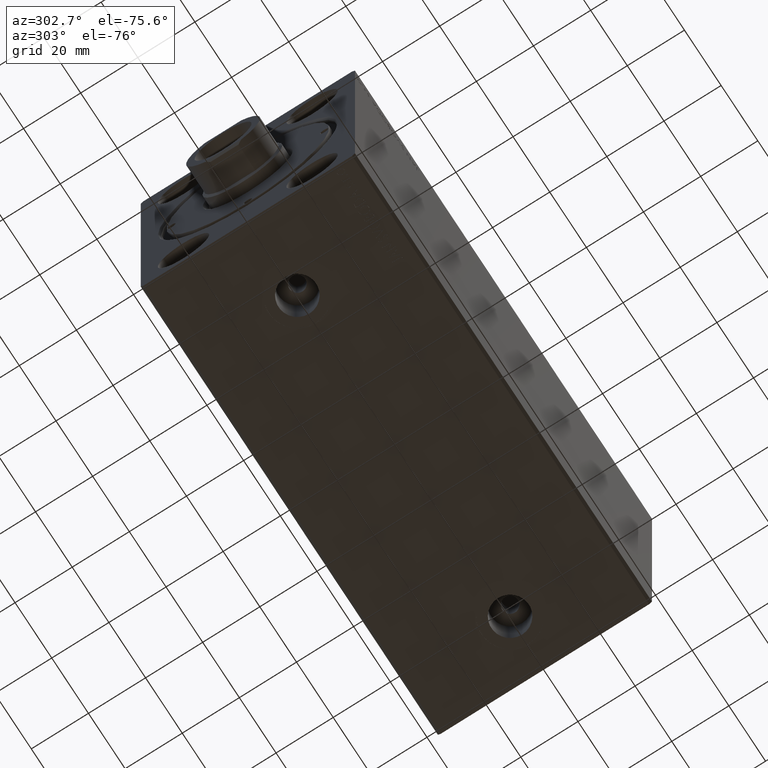
[diagram: clean part render]
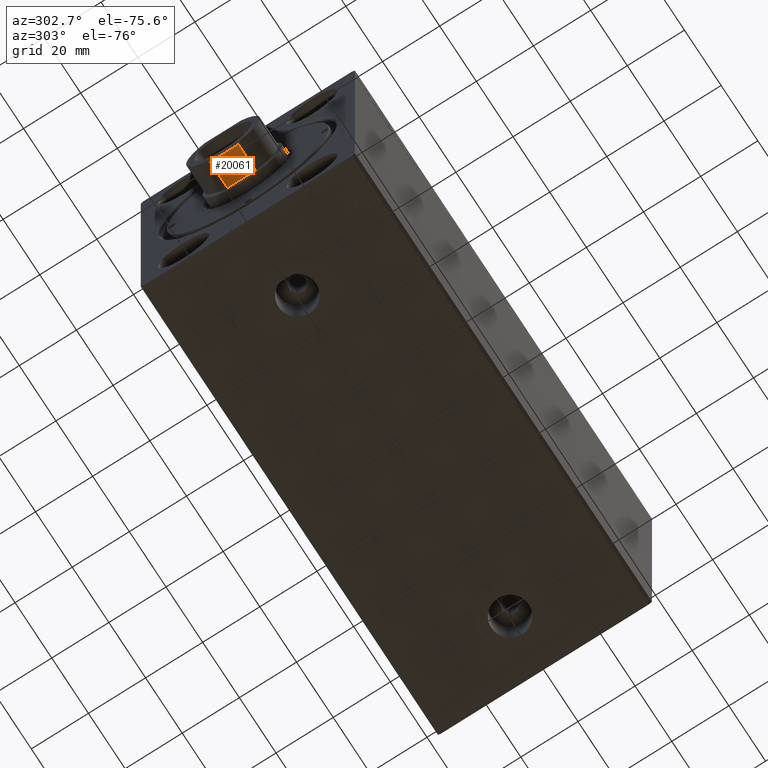
[diagram: same view with one face highlighted and labeled with its STEP entity id]
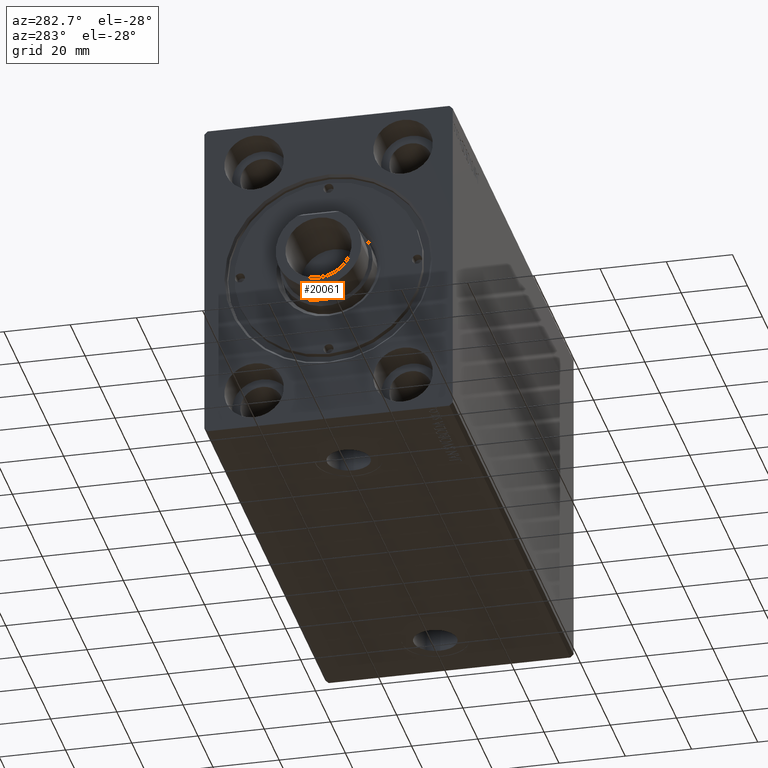
[diagram: same view with one face highlighted and labeled with its STEP entity id]
A machine part, auxiliary view. The second image highlights one B-rep face of the part: STEP entity #20061.
A second angle (auxiliary view) of the same face is appended — the face is thin or edge-on in the first view.
In plain terms, the highlighted planar face has unit normal (0, 0, 1).
Its self-contained STEP definition (entity closure, byte-faithful):
#1614 = VECTOR ( 'NONE', #1991, 1000.000000000000000 ) ;
#1991 = DIRECTION ( 'NONE',  ( -0.000000000000000000, -1.704084742170593683E-16, 1.000000000000000000 ) ) ;
#2867 = VECTOR ( 'NONE', #4561, 1000.000000000000000 ) ;
#4229 = EDGE_CURVE ( 'NONE', #20552, #8651, #12344, .T. ) ;
#4561 = DIRECTION ( 'NONE',  ( 0.000000000000000000, 1.000000000000000000, 1.704084742170593683E-16 ) ) ;
#5013 = FACE_OUTER_BOUND ( 'NONE', #17648, .T. ) ;
#5785 = ORIENTED_EDGE ( 'NONE', *, *, #42332, .T. ) ;
#7071 = VECTOR ( 'NONE', #22046, 1000.000000000000000 ) ;
#8349 = CARTESIAN_POINT ( 'NONE',  ( -12.00000000000000000, -58.78775382679627626, 118.4999999999999716 ) ) ;
#8474 = VERTEX_POINT ( 'NONE', #26318 ) ;
#8651 = VERTEX_POINT ( 'NONE', #42259 ) ;
#10876 = LINE ( 'NONE', #41437, #2867 ) ;
#12344 = LINE ( 'NONE', #29639, #1614 ) ;
#14437 = CARTESIAN_POINT ( 'NONE',  ( -12.00000000000000000, 4.895058733049054922, 118.4999999999999716 ) ) ;
#14453 = PLANE ( 'NONE',  #32356 ) ;
#17648 = EDGE_LOOP ( 'NONE', ( #32166, #44520, #18818, #5785 ) ) ;
#18704 = DIRECTION ( 'NONE',  ( 1.000000000000000000, -0.000000000000000000, 0.000000000000000000 ) ) ;
#18818 = ORIENTED_EDGE ( 'NONE', *, *, #4229, .F. ) ;
#20061 = ADVANCED_FACE ( 'NONE', ( #5013 ), #14453, .F. ) ;
#20552 = VERTEX_POINT ( 'NONE', #14437 ) ;
#21845 = VECTOR ( 'NONE', #36812, 1000.000000000000000 ) ;
#21963 = EDGE_CURVE ( 'NONE', #8474, #8651, #10876, .T. ) ;
#22046 = DIRECTION ( 'NONE',  ( -0.000000000000000000, -1.000000000000000000, 0.000000000000000000 ) ) ;
#23085 = CARTESIAN_POINT ( 'NONE',  ( -12.00000000000000000, -4.895058733049095778, 128.5000000000000000 ) ) ;
#25196 = LINE ( 'NONE', #8349, #7071 ) ;
#26318 = CARTESIAN_POINT ( 'NONE',  ( -12.00000000000000000, -4.895058733049095778, 127.7900000000000205 ) ) ;
#26458 = LINE ( 'NONE', #23085, #21845 ) ;
#28165 = CARTESIAN_POINT ( 'NONE',  ( -12.00000000000000000, -58.78775382679627626, -8.496062931100334836 ) ) ;
#29639 = CARTESIAN_POINT ( 'NONE',  ( -12.00000000000000000, 4.895058733049053146, 128.5000000000000000 ) ) ;
#30515 = EDGE_CURVE ( 'NONE', #8474, #31040, #26458, .T. ) ;
#31040 = VERTEX_POINT ( 'NONE', #39934 ) ;
#32166 = ORIENTED_EDGE ( 'NONE', *, *, #30515, .F. ) ;
#32356 = AXIS2_PLACEMENT_3D ( 'NONE', #28165, #18704, #38733 ) ;
#36812 = DIRECTION ( 'NONE',  ( 0.000000000000000000, 1.704084742170593683E-16, -1.000000000000000000 ) ) ;
#38733 = DIRECTION ( 'NONE',  ( 0.000000000000000000, 0.000000000000000000, -1.000000000000000000 ) ) ;
#39934 = CARTESIAN_POINT ( 'NONE',  ( -12.00000000000000000, -4.895058733049094002, 118.4999999999999716 ) ) ;
#41437 = CARTESIAN_POINT ( 'NONE',  ( -12.00000000000000000, -58.78775382679629757, 127.7900000000000205 ) ) ;
#42259 = CARTESIAN_POINT ( 'NONE',  ( -12.00000000000000000, 4.895058733049053146, 127.7900000000000205 ) ) ;
#42332 = EDGE_CURVE ( 'NONE', #20552, #31040, #25196, .T. ) ;
#44520 = ORIENTED_EDGE ( 'NONE', *, *, #21963, .T. ) ;